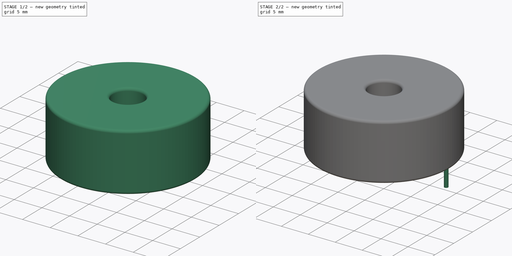
[diagram: build sequence overview — one tinted view per stage of 2, left to right]
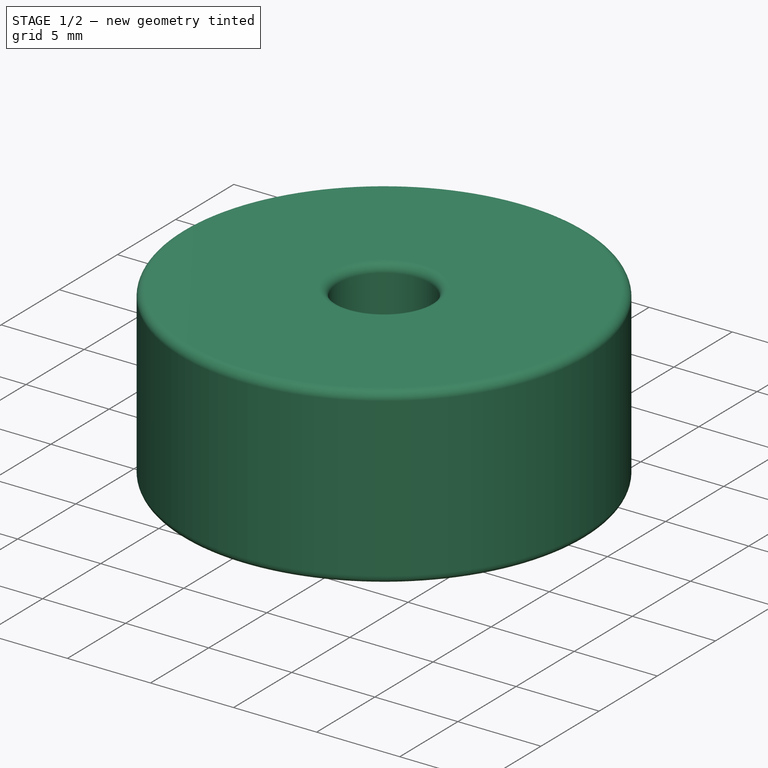
[diagram: stage 1 of 2 — iso view after this stage's code; geometry added in this stage tinted green]
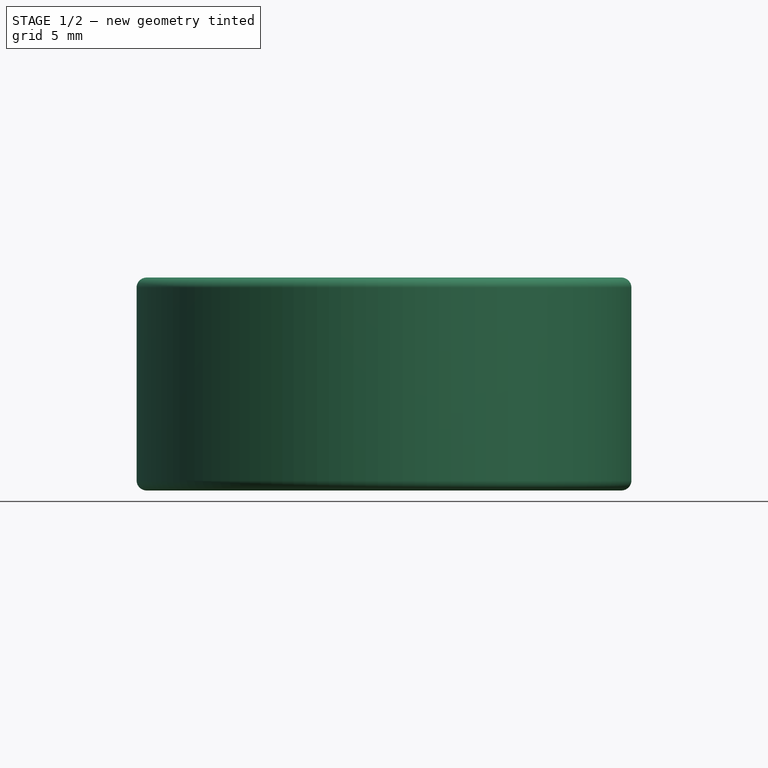
[diagram: stage 1 of 2 — front view after this stage's code; geometry added in this stage tinted green]
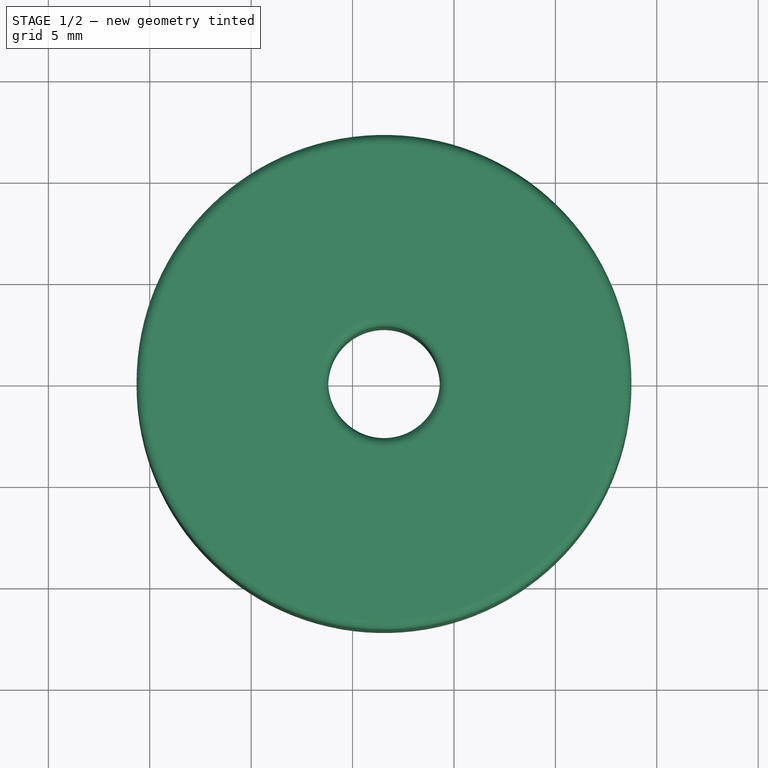
[diagram: stage 1 of 2 — top view after this stage's code; geometry added in this stage tinted green]
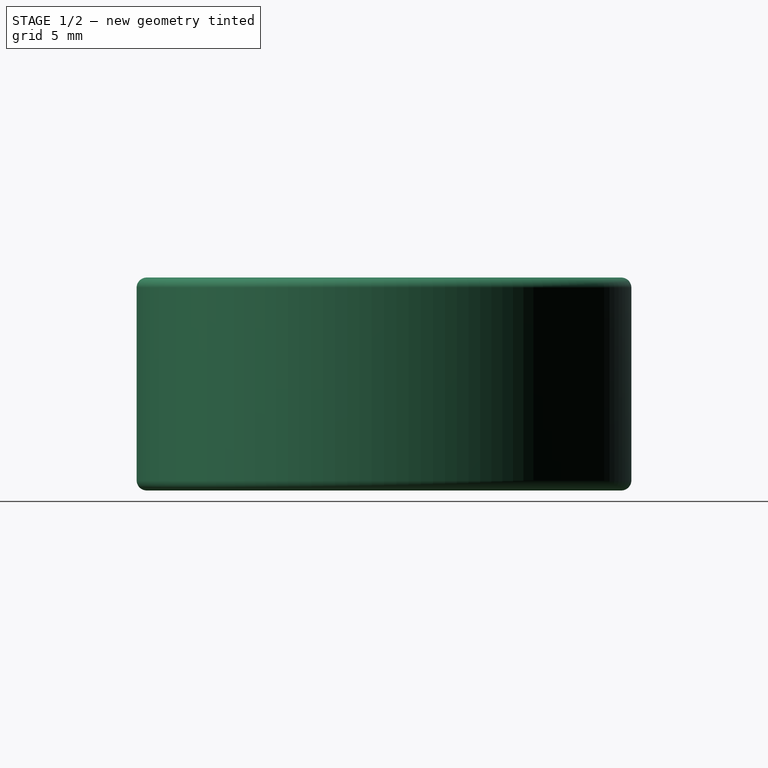
[diagram: stage 1 of 2 — right view after this stage's code; geometry added in this stage tinted green]
FCSTD DOCUMENT  (FreeCAD 0.16R6703 (Git))
Label: L_Radial_D24.4mm_P23.10mm_muRATA_1400series
License: All rights reserved
LicenseURL: http://en.wikipedia.org/wiki/All_rights_reserved
objects: Sketcher::SketchObject×2, PartDesign::Pad×2, Spreadsheet::Sheet×1, PartDesign::Fillet×1
note: 7 computed .brp shape members not serialized (recipe doc carries the construction recipe); baked Part::Feature solids carry a one-line shape summary decoded from their .brp

FEATURE [Spreadsheet::Sheet] Spreadsheet  label="dimensions"
  cells = A1=Wx; B1(Wx)=24.4; C1(WW)=5.5; D1=24.4; A2=Wy; B2(Wy)=24.4; D2=24.4; A3=RM; B3(RMx)=23.1; C3(RMy)=0; A4=d_wire; B4(d_wire)=0.7; A5=H; B5(H)=10.5; A6=offsetx; B6(offsetx)=0.6499999999999986
FEATURE [Sketcher::SketchObject] Sketch
  Placement = pos=(0,0,0.1) rot=(0,0,1;0rad)
  expr: Constraints[0] = Spreadsheet.Wx / 2
  expr: Constraints[4] = Spreadsheet.WW / 2
  expr: Constraints[2] = Spreadsheet.RMy / 2
  expr: Constraints[1] = Spreadsheet.RMx / 2
  sketch-geometry (2):
    g0: Circle CenterX=11.55 CenterY=0 CenterZ=0 NormalX=0 NormalY=0 NormalZ=1 Radius=12.2
    g1: Circle CenterX=11.55 CenterY=0 CenterZ=0 NormalX=0 NormalY=0 NormalZ=1 Radius=2.75
  constraints (5):
    c: Radius(g0) = 12.2
    c: DistanceX(g-1,g0) = 11.55
    c: DistanceY(g-1,g0) = 0
    c: Coincident(g1,g0)
    c: Radius(g1) = 2.75
FEATURE [PartDesign::Pad] Pad
  Length = 10.5
  Length2 = 100
  Placement = pos=(0,0,0.1) rot=(0,0,1;0rad)
  Sketch = -> Sketch
  Type = 0
  expr: Length = Spreadsheet.H
FEATURE [PartDesign::Fillet] Fillet
  Base = -> Pad [Edge6,Edge3,Edge2]
  Placement = pos=(0,0,0.1) rot=(0,0,1;0rad)
  Radius = 0.5
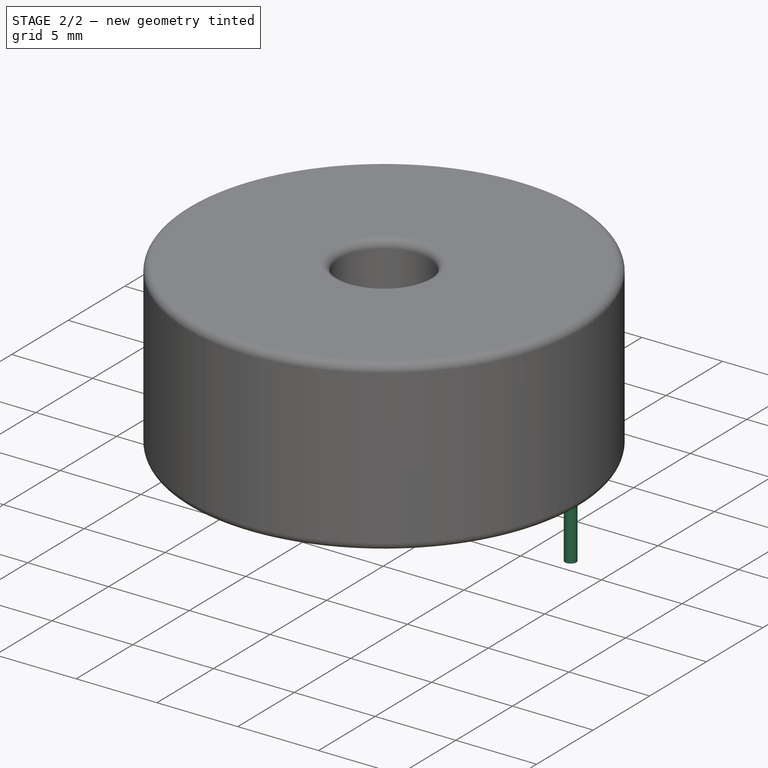
[diagram: stage 2 of 2 — iso view after this stage's code; geometry added in this stage tinted green]
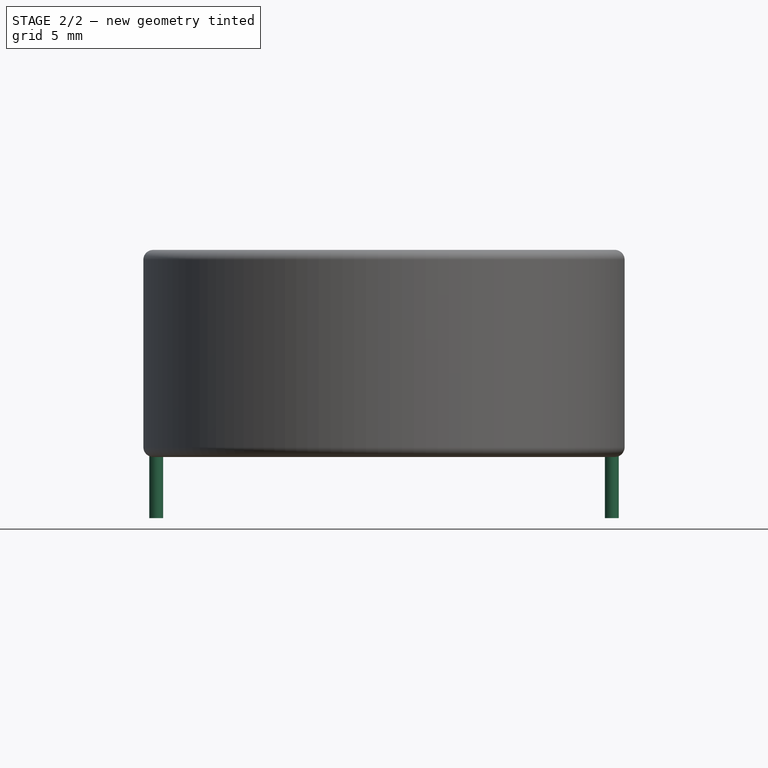
[diagram: stage 2 of 2 — front view after this stage's code; geometry added in this stage tinted green]
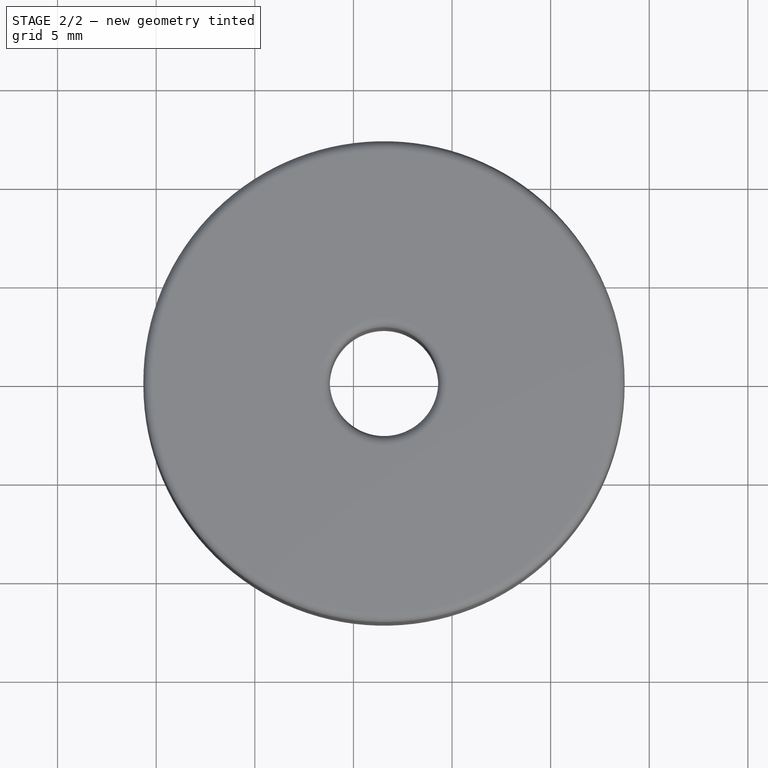
[diagram: stage 2 of 2 — top view after this stage's code; geometry added in this stage tinted green]
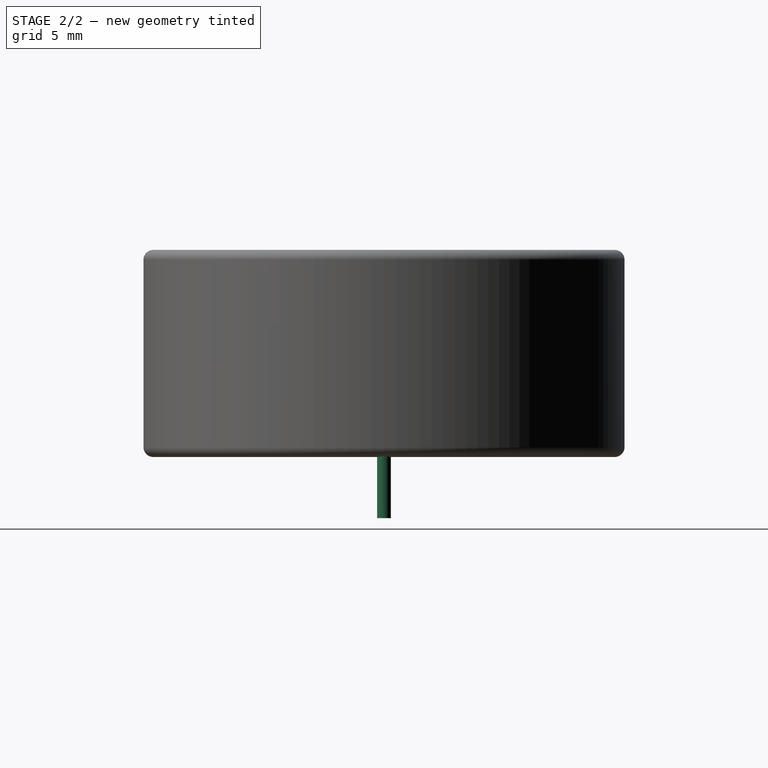
[diagram: stage 2 of 2 — right view after this stage's code; geometry added in this stage tinted green]
FEATURE [Sketcher::SketchObject] Sketch001
  Placement = pos=(0,0,0.5) rot=(0,0,1;0rad)
  expr: Constraints[4] = Spreadsheet.RMx
  expr: Constraints[2] = Spreadsheet.RMy
  expr: Constraints[1] = Spreadsheet.d_wire / 2
  sketch-geometry (2):
    g0: Circle CenterX=0 CenterY=0 CenterZ=0 NormalX=0 NormalY=0 NormalZ=1 Radius=0.35
    g1: Circle CenterX=23.1 CenterY=0 CenterZ=0 NormalX=0 NormalY=0 NormalZ=1 Radius=0.35
  constraints (5):
    c: Equal(g0,g1)
    c: Radius(g0) = 0.35
    c: DistanceY(g-1,g1) = 0
    c: Coincident(g0,g-1)
    c: DistanceX(g-1,g1) = 23.1
FEATURE [PartDesign::Pad] Pad001
  Length = 5.25
  Length2 = 3.5
  Placement = pos=(0,0,0.5) rot=(0,0,1;0rad)
  Reversed = true
  Sketch = -> Sketch001
  Type = 4
  expr: Length = Spreadsheet.H / 2
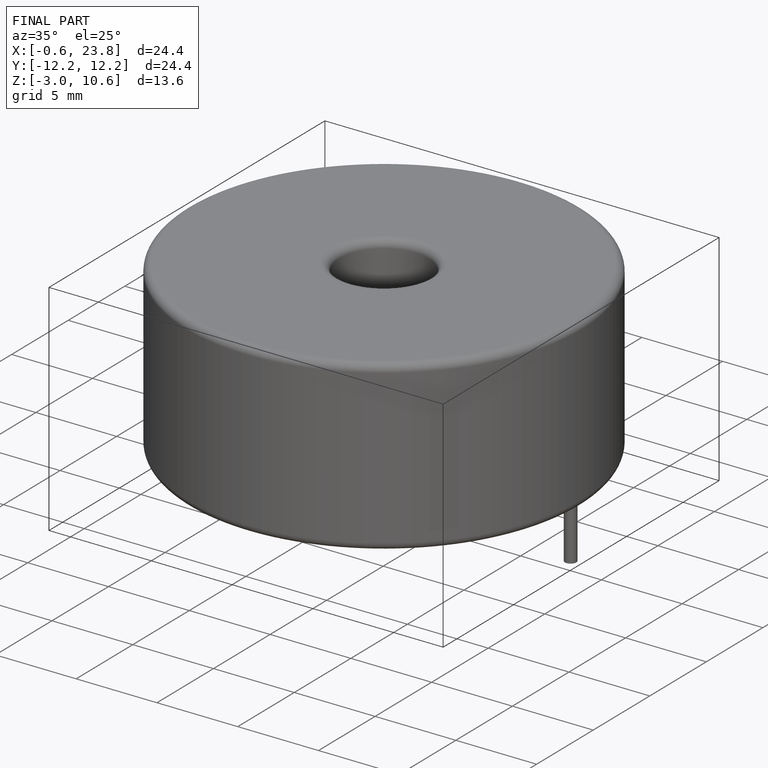
[diagram: finished part — iso view with bounding-box wireframe]
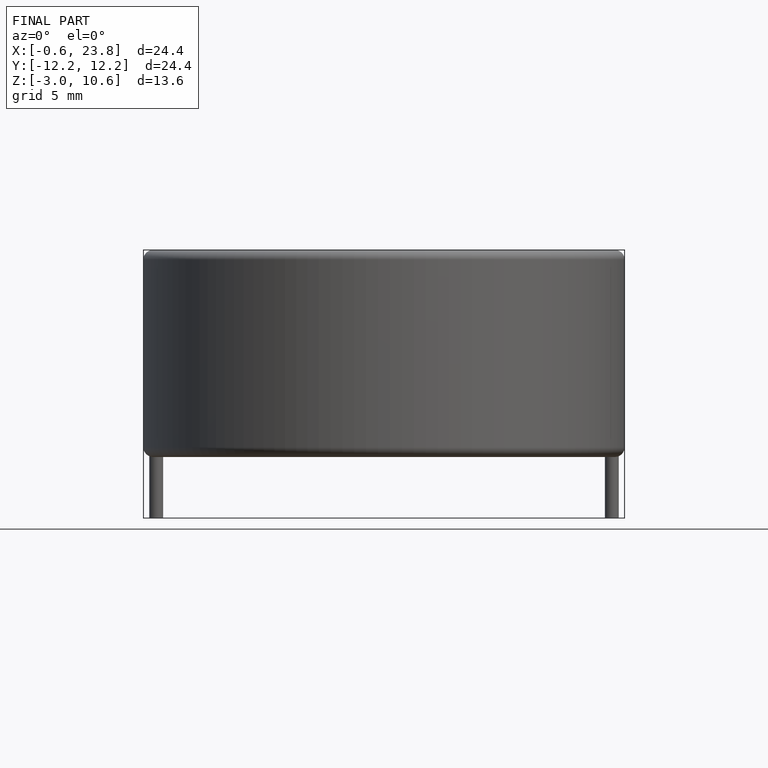
[diagram: finished part — front view with bounding-box wireframe]
